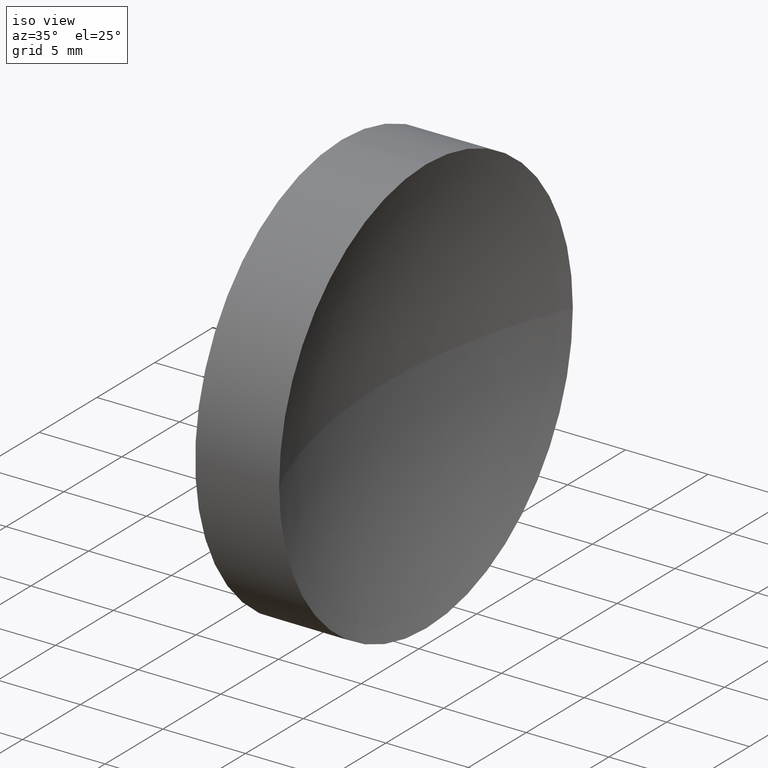
[diagram: clean part render]
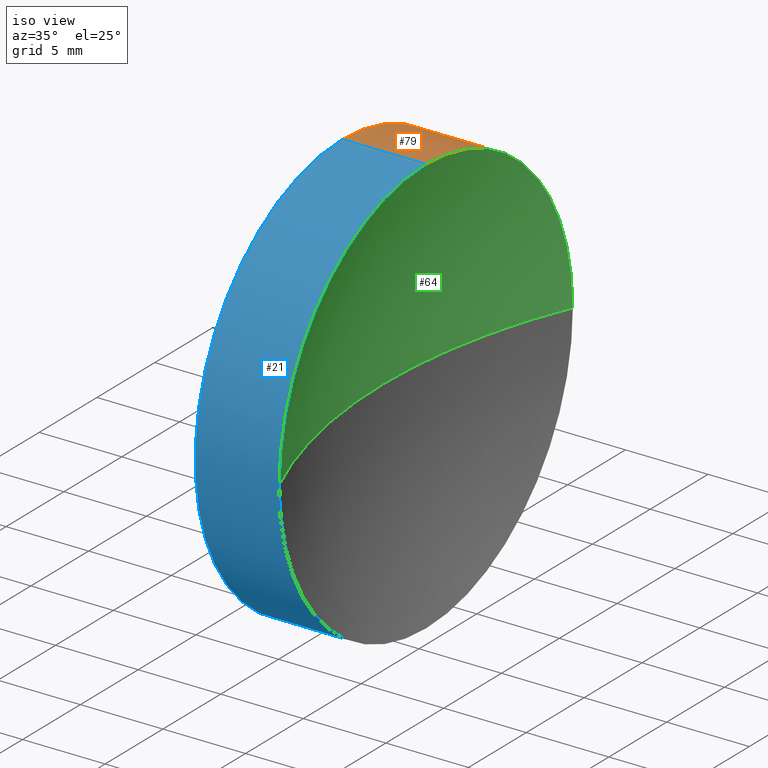
[diagram: same view with three faces highlighted in distinct colors, each labeled with its STEP entity id]
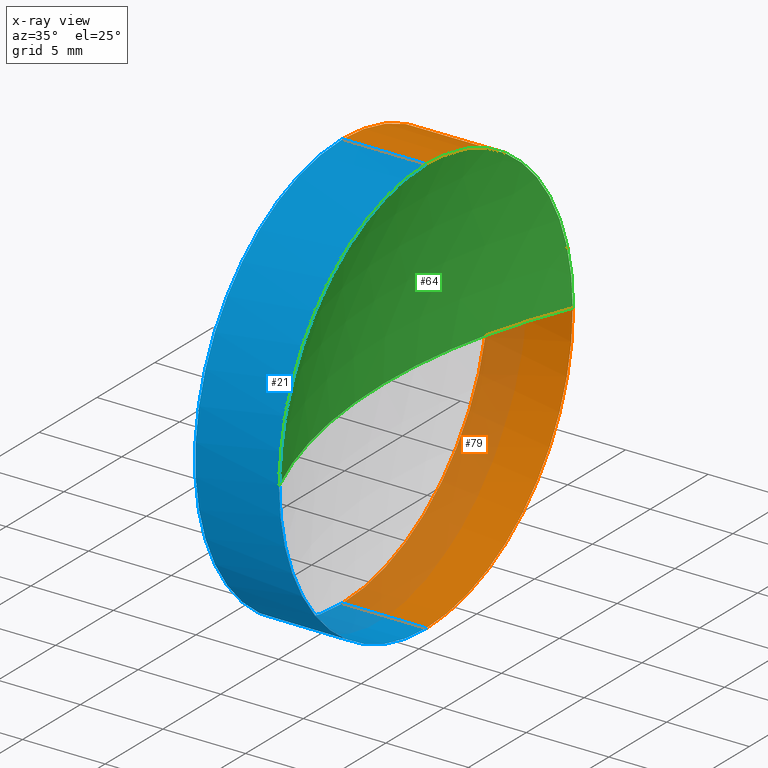
[diagram: x-ray of the same camera — body ghosted, the three highlighted faces saturated]
A machine part, iso view with three faces highlighted in distinct colors.
The next image is the same camera in x-ray (body ghosted, the three faces saturated) — at least one of them is partly hidden behind the body in this view.
Their STEP definitions:

[orange] entity #79 — the highlighted cylindrical surface (partial cylindrical patch) has radius 12.7 mm, axis along (-1, -0, -0).
#4 = ORIENTED_EDGE ( 'NONE', *, *, #84, .T. ) ;
#13 = DIRECTION ( 'NONE',  ( 0.0000000000000000000, 0.0000000000000000000, 1.000000000000000000 ) ) ;
#14 = CARTESIAN_POINT ( 'NONE',  ( 111.9552297575605700, 71.19398908659370300, 0.0000000000000000000 ) ) ;
#15 = CIRCLE ( 'NONE', #58, 12.70000000000000300 ) ;
#16 = CARTESIAN_POINT ( 'NONE',  ( 124.5909521089847200, 71.19398908659370300, -12.70000000000001500 ) ) ;
#18 = CARTESIAN_POINT ( 'NONE',  ( 124.5909521089847200, 71.19398908659370300, 12.70000000000001500 ) ) ;
#22 = EDGE_CURVE ( 'NONE', #178, #125, #82, .T. ) ;
#24 = CARTESIAN_POINT ( 'NONE',  ( 124.5909521089847200, 71.19398908659370300, 0.0000000000000000000 ) ) ;
#25 = ORIENTED_EDGE ( 'NONE', *, *, #153, .T. ) ;
#27 = LINE ( 'NONE', #55, #159 ) ;
#29 = VERTEX_POINT ( 'NONE', #124 ) ;
#35 = DIRECTION ( 'NONE',  ( -1.000000000000000000, -0.0000000000000000000, -0.0000000000000000000 ) ) ;
#37 = CARTESIAN_POINT ( 'NONE',  ( 119.5068341785477100, 71.19398908659370300, 0.0000000000000000000 ) ) ;
#45 = EDGE_LOOP ( 'NONE', ( #77, #25, #138, #105, #4 ) ) ;
#47 = DIRECTION ( 'NONE',  ( 0.0000000000000000000, 0.0000000000000000000, 1.000000000000000000 ) ) ;
#49 = CIRCLE ( 'NONE', #139, 12.70000000000001700 ) ;
#50 = DIRECTION ( 'NONE',  ( 0.0000000000000000000, 0.0000000000000000000, 1.000000000000000000 ) ) ;
#55 = CARTESIAN_POINT ( 'NONE',  ( 111.9552297575605700, 71.19398908659370300, 12.70000000000001000 ) ) ;
#58 = AXIS2_PLACEMENT_3D ( 'NONE', #37, #65, #148 ) ;
#62 = AXIS2_PLACEMENT_3D ( 'NONE', #14, #35, #47 ) ;
#65 = DIRECTION ( 'NONE',  ( -1.000000000000000000, -0.0000000000000000000, -0.0000000000000000000 ) ) ;
#67 = DIRECTION ( 'NONE',  ( -1.000000000000000000, -0.0000000000000000000, -0.0000000000000000000 ) ) ;
#69 = AXIS2_PLACEMENT_3D ( 'NONE', #24, #141, #13 ) ;
#72 = CARTESIAN_POINT ( 'NONE',  ( 119.5068341785477100, 71.19398908659370300, 12.70000000000000300 ) ) ;
#73 = EDGE_CURVE ( 'NONE', #90, #29, #15, .T. ) ;
#77 = ORIENTED_EDGE ( 'NONE', *, *, #22, .T. ) ;
#79 = ADVANCED_FACE ( 'NONE', ( #165 ), #127, .T. ) ;
#82 = CIRCLE ( 'NONE', #69, 12.70000000000001700 ) ;
#84 = EDGE_CURVE ( 'NONE', #115, #178, #49, .T. ) ;
#90 = VERTEX_POINT ( 'NONE', #72 ) ;
#97 = EDGE_CURVE ( 'NONE', #115, #90, #27, .T. ) ;
#102 = CARTESIAN_POINT ( 'NONE',  ( 124.5909521089847200, 83.89398908659372000, 1.555301434917138800E-015 ) ) ;
#105 = ORIENTED_EDGE ( 'NONE', *, *, #97, .F. ) ;
#115 = VERTEX_POINT ( 'NONE', #18 ) ;
#117 = CARTESIAN_POINT ( 'NONE',  ( 124.5909521089847200, 71.19398908659370300, 0.0000000000000000000 ) ) ;
#124 = CARTESIAN_POINT ( 'NONE',  ( 119.5068341785477100, 71.19398908659370300, -12.70000000000000300 ) ) ;
#125 = VERTEX_POINT ( 'NONE', #16 ) ;
#127 = CYLINDRICAL_SURFACE ( 'NONE', #62, 12.70000000000001000 ) ;
#136 = LINE ( 'NONE', #174, #162 ) ;
#138 = ORIENTED_EDGE ( 'NONE', *, *, #73, .F. ) ;
#139 = AXIS2_PLACEMENT_3D ( 'NONE', #117, #145, #50 ) ;
#141 = DIRECTION ( 'NONE',  ( -1.000000000000000000, -0.0000000000000000000, -0.0000000000000000000 ) ) ;
#145 = DIRECTION ( 'NONE',  ( -1.000000000000000000, -0.0000000000000000000, -0.0000000000000000000 ) ) ;
#148 = DIRECTION ( 'NONE',  ( 0.0000000000000000000, 0.0000000000000000000, 1.000000000000000000 ) ) ;
#153 = EDGE_CURVE ( 'NONE', #125, #29, #136, .T. ) ;
#159 = VECTOR ( 'NONE', #67, 1000.000000000000000 ) ;
#162 = VECTOR ( 'NONE', #173, 1000.000000000000000 ) ;
#165 = FACE_OUTER_BOUND ( 'NONE', #45, .T. ) ;
#173 = DIRECTION ( 'NONE',  ( -1.000000000000000000, -0.0000000000000000000, -0.0000000000000000000 ) ) ;
#174 = CARTESIAN_POINT ( 'NONE',  ( 111.9552297575605700, 71.19398908659370300, -12.70000000000001000 ) ) ;
#178 = VERTEX_POINT ( 'NONE', #102 ) ;

[blue] entity #21 — the highlighted cylindrical surface (partial cylindrical patch) has radius 12.7 mm, axis along (-1, -0, -0).
#1 = ORIENTED_EDGE ( 'NONE', *, *, #120, .T. ) ;
#7 = ORIENTED_EDGE ( 'NONE', *, *, #132, .F. ) ;
#9 = CIRCLE ( 'NONE', #134, 12.70000000000000300 ) ;
#11 = DIRECTION ( 'NONE',  ( -1.000000000000000000, -0.0000000000000000000, -0.0000000000000000000 ) ) ;
#16 = CARTESIAN_POINT ( 'NONE',  ( 124.5909521089847200, 71.19398908659370300, -12.70000000000001500 ) ) ;
#18 = CARTESIAN_POINT ( 'NONE',  ( 124.5909521089847200, 71.19398908659370300, 12.70000000000001500 ) ) ;
#21 = ADVANCED_FACE ( 'NONE', ( #119 ), #166, .T. ) ;
#27 = LINE ( 'NONE', #55, #159 ) ;
#29 = VERTEX_POINT ( 'NONE', #124 ) ;
#33 = CARTESIAN_POINT ( 'NONE',  ( 111.9552297575605700, 71.19398908659370300, 0.0000000000000000000 ) ) ;
#34 = EDGE_CURVE ( 'NONE', #125, #147, #101, .T. ) ;
#36 = ORIENTED_EDGE ( 'NONE', *, *, #97, .T. ) ;
#38 = DIRECTION ( 'NONE',  ( 0.0000000000000000000, 0.0000000000000000000, 1.000000000000000000 ) ) ;
#46 = AXIS2_PLACEMENT_3D ( 'NONE', #33, #168, #184 ) ;
#55 = CARTESIAN_POINT ( 'NONE',  ( 111.9552297575605700, 71.19398908659370300, 12.70000000000001000 ) ) ;
#56 = DIRECTION ( 'NONE',  ( 0.0000000000000000000, 0.0000000000000000000, 1.000000000000000000 ) ) ;
#60 = CIRCLE ( 'NONE', #108, 12.70000000000001700 ) ;
#63 = EDGE_LOOP ( 'NONE', ( #154, #113, #1, #36, #7 ) ) ;
#67 = DIRECTION ( 'NONE',  ( -1.000000000000000000, -0.0000000000000000000, -0.0000000000000000000 ) ) ;
#72 = CARTESIAN_POINT ( 'NONE',  ( 119.5068341785477100, 71.19398908659370300, 12.70000000000000300 ) ) ;
#74 = DIRECTION ( 'NONE',  ( 0.0000000000000000000, 0.0000000000000000000, 1.000000000000000000 ) ) ;
#80 = AXIS2_PLACEMENT_3D ( 'NONE', #99, #11, #38 ) ;
#87 = DIRECTION ( 'NONE',  ( -1.000000000000000000, -0.0000000000000000000, -0.0000000000000000000 ) ) ;
#90 = VERTEX_POINT ( 'NONE', #72 ) ;
#97 = EDGE_CURVE ( 'NONE', #115, #90, #27, .T. ) ;
#99 = CARTESIAN_POINT ( 'NONE',  ( 124.5909521089847200, 71.19398908659370300, 0.0000000000000000000 ) ) ;
#101 = CIRCLE ( 'NONE', #80, 12.70000000000001700 ) ;
#108 = AXIS2_PLACEMENT_3D ( 'NONE', #150, #87, #56 ) ;
#113 = ORIENTED_EDGE ( 'NONE', *, *, #34, .T. ) ;
#114 = DIRECTION ( 'NONE',  ( -1.000000000000000000, -0.0000000000000000000, -0.0000000000000000000 ) ) ;
#115 = VERTEX_POINT ( 'NONE', #18 ) ;
#116 = CARTESIAN_POINT ( 'NONE',  ( 119.5068341785477100, 71.19398908659370300, 0.0000000000000000000 ) ) ;
#119 = FACE_OUTER_BOUND ( 'NONE', #63, .T. ) ;
#120 = EDGE_CURVE ( 'NONE', #147, #115, #60, .T. ) ;
#124 = CARTESIAN_POINT ( 'NONE',  ( 119.5068341785477100, 71.19398908659370300, -12.70000000000000300 ) ) ;
#125 = VERTEX_POINT ( 'NONE', #16 ) ;
#128 = CARTESIAN_POINT ( 'NONE',  ( 124.5909521089847200, 58.49398908659370000, 0.0000000000000000000 ) ) ;
#132 = EDGE_CURVE ( 'NONE', #29, #90, #9, .T. ) ;
#134 = AXIS2_PLACEMENT_3D ( 'NONE', #116, #114, #74 ) ;
#136 = LINE ( 'NONE', #174, #162 ) ;
#147 = VERTEX_POINT ( 'NONE', #128 ) ;
#150 = CARTESIAN_POINT ( 'NONE',  ( 124.5909521089847200, 71.19398908659370300, 0.0000000000000000000 ) ) ;
#153 = EDGE_CURVE ( 'NONE', #125, #29, #136, .T. ) ;
#154 = ORIENTED_EDGE ( 'NONE', *, *, #153, .F. ) ;
#159 = VECTOR ( 'NONE', #67, 1000.000000000000000 ) ;
#162 = VECTOR ( 'NONE', #173, 1000.000000000000000 ) ;
#166 = CYLINDRICAL_SURFACE ( 'NONE', #46, 12.70000000000001000 ) ;
#168 = DIRECTION ( 'NONE',  ( -1.000000000000000000, -0.0000000000000000000, -0.0000000000000000000 ) ) ;
#173 = DIRECTION ( 'NONE',  ( -1.000000000000000000, -0.0000000000000000000, -0.0000000000000000000 ) ) ;
#174 = CARTESIAN_POINT ( 'NONE',  ( 111.9552297575605700, 71.19398908659370300, -12.70000000000001000 ) ) ;
#184 = DIRECTION ( 'NONE',  ( 0.0000000000000000000, 0.0000000000000000000, 1.000000000000000000 ) ) ;

[green] entity #64 — the highlighted spherical surface has radius 32.5 mm.
#3 = DIRECTION ( 'NONE',  ( -1.000000000000000000, 0.0000000000000000000, 0.0000000000000000000 ) ) ;
#10 = ORIENTED_EDGE ( 'NONE', *, *, #112, .T. ) ;
#17 = CARTESIAN_POINT ( 'NONE',  ( 154.5068341785477100, 71.19398908659371700, 0.0000000000000000000 ) ) ;
#18 = CARTESIAN_POINT ( 'NONE',  ( 124.5909521089847200, 71.19398908659370300, 12.70000000000001500 ) ) ;
#31 = AXIS2_PLACEMENT_3D ( 'NONE', #17, #126, #3 ) ;
#48 = DIRECTION ( 'NONE',  ( 0.0000000000000000000, 0.0000000000000000000, 1.000000000000000000 ) ) ;
#49 = CIRCLE ( 'NONE', #139, 12.70000000000001700 ) ;
#50 = DIRECTION ( 'NONE',  ( 0.0000000000000000000, 0.0000000000000000000, 1.000000000000000000 ) ) ;
#56 = DIRECTION ( 'NONE',  ( 0.0000000000000000000, 0.0000000000000000000, 1.000000000000000000 ) ) ;
#57 = DIRECTION ( 'NONE',  ( 0.0000000000000000000, -1.000000000000000000, -1.224646799147353500E-016 ) ) ;
#59 = ORIENTED_EDGE ( 'NONE', *, *, #120, .F. ) ;
#60 = CIRCLE ( 'NONE', #108, 12.70000000000001700 ) ;
#64 = ADVANCED_FACE ( 'NONE', ( #107 ), #123, .F. ) ;
#66 = CARTESIAN_POINT ( 'NONE',  ( 154.5068341785477100, 71.19398908659371700, 0.0000000000000000000 ) ) ;
#70 = VERTEX_POINT ( 'NONE', #143 ) ;
#75 = DIRECTION ( 'NONE',  ( 0.0000000000000000000, -1.224646799147353200E-016, 1.000000000000000000 ) ) ;
#84 = EDGE_CURVE ( 'NONE', #115, #178, #49, .T. ) ;
#87 = DIRECTION ( 'NONE',  ( -1.000000000000000000, -0.0000000000000000000, -0.0000000000000000000 ) ) ;
#92 = AXIS2_PLACEMENT_3D ( 'NONE', #66, #48, #183 ) ;
#94 = ORIENTED_EDGE ( 'NONE', *, *, #160, .F. ) ;
#102 = CARTESIAN_POINT ( 'NONE',  ( 124.5909521089847200, 83.89398908659372000, 1.555301434917138800E-015 ) ) ;
#107 = FACE_OUTER_BOUND ( 'NONE', #186, .T. ) ;
#108 = AXIS2_PLACEMENT_3D ( 'NONE', #150, #87, #56 ) ;
#112 = EDGE_CURVE ( 'NONE', #147, #70, #142, .T. ) ;
#115 = VERTEX_POINT ( 'NONE', #18 ) ;
#117 = CARTESIAN_POINT ( 'NONE',  ( 124.5909521089847200, 71.19398908659370300, 0.0000000000000000000 ) ) ;
#120 = EDGE_CURVE ( 'NONE', #147, #115, #60, .T. ) ;
#123 = SPHERICAL_SURFACE ( 'NONE', #92, 32.50000000000000000 ) ;
#126 = DIRECTION ( 'NONE',  ( 0.0000000000000000000, 0.0000000000000000000, -1.000000000000000000 ) ) ;
#128 = CARTESIAN_POINT ( 'NONE',  ( 124.5909521089847200, 58.49398908659370000, 0.0000000000000000000 ) ) ;
#129 = CIRCLE ( 'NONE', #155, 32.50000000000000000 ) ;
#139 = AXIS2_PLACEMENT_3D ( 'NONE', #117, #145, #50 ) ;
#142 = CIRCLE ( 'NONE', #31, 32.50000000000000000 ) ;
#143 = CARTESIAN_POINT ( 'NONE',  ( 122.0068341785477100, 71.19398908659371700, 0.0000000000000000000 ) ) ;
#145 = DIRECTION ( 'NONE',  ( -1.000000000000000000, -0.0000000000000000000, -0.0000000000000000000 ) ) ;
#147 = VERTEX_POINT ( 'NONE', #128 ) ;
#149 = CARTESIAN_POINT ( 'NONE',  ( 154.5068341785477100, 71.19398908659371700, 0.0000000000000000000 ) ) ;
#150 = CARTESIAN_POINT ( 'NONE',  ( 124.5909521089847200, 71.19398908659370300, 0.0000000000000000000 ) ) ;
#155 = AXIS2_PLACEMENT_3D ( 'NONE', #149, #75, #57 ) ;
#157 = ORIENTED_EDGE ( 'NONE', *, *, #84, .F. ) ;
#160 = EDGE_CURVE ( 'NONE', #178, #70, #129, .T. ) ;
#178 = VERTEX_POINT ( 'NONE', #102 ) ;
#183 = DIRECTION ( 'NONE',  ( 0.0000000000000000000, -1.000000000000000000, 0.0000000000000000000 ) ) ;
#186 = EDGE_LOOP ( 'NONE', ( #94, #157, #59, #10 ) ) ;